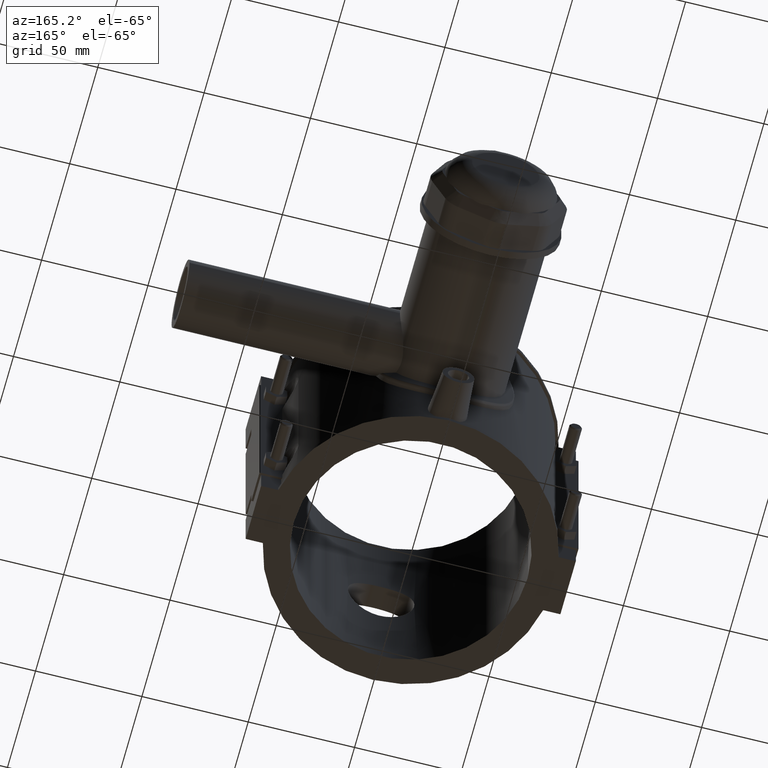
[diagram: clean part render]
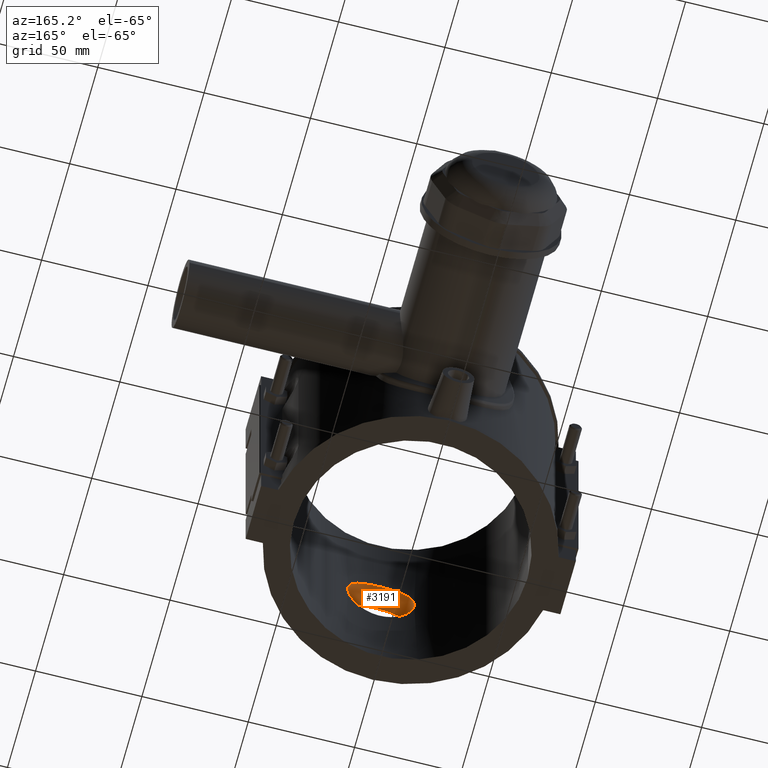
[diagram: same view with one face highlighted and labeled with its STEP entity id]
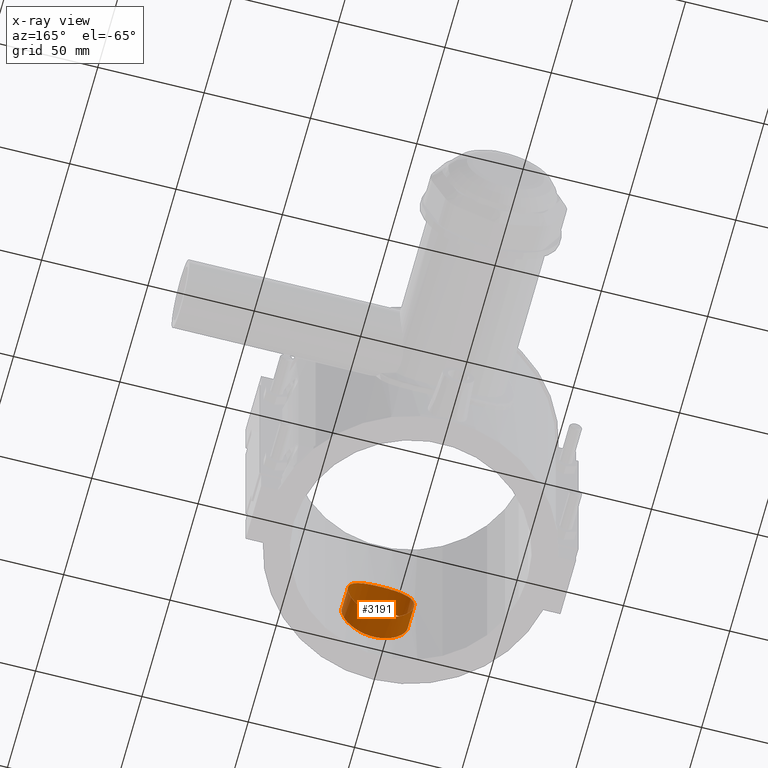
[diagram: x-ray of the same camera — body ghosted, the highlighted face saturated]
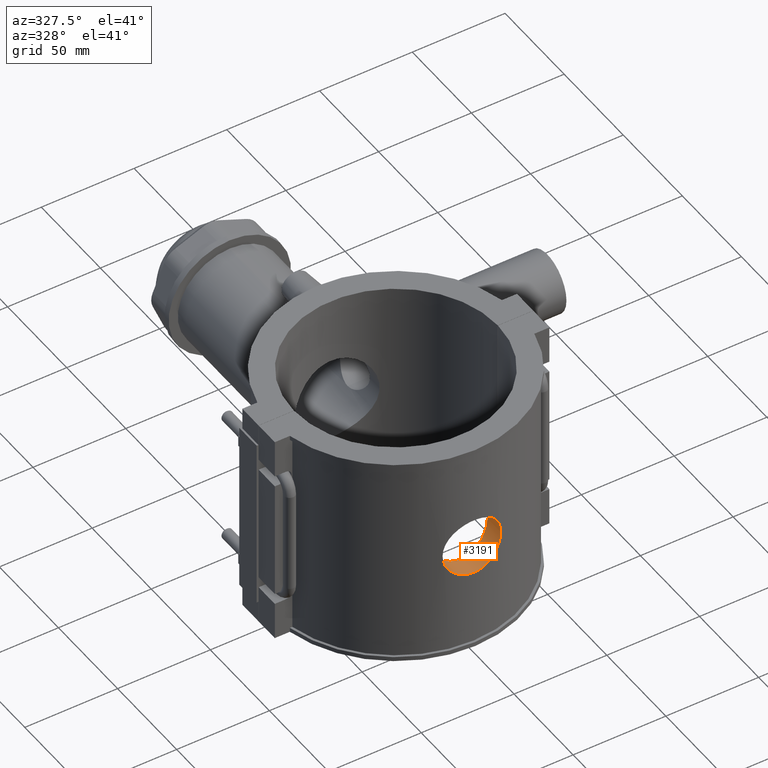
[diagram: same view with one face highlighted and labeled with its STEP entity id]
A machine part, auxiliary view. The second image highlights one B-rep face of the part: STEP entity #3191.
The next image is the same camera in x-ray: the body ghosted, the highlighted face saturated — about 0% of this face is hidden behind the body in this view.
A second angle (auxiliary view) of the same face is appended — the face is thin or edge-on in the first view.
In plain terms, the highlighted cylindrical surface (bore or boss wall) has radius 15.68 mm, axis along (0, -1, 0).
Its self-contained STEP definition (entity closure, byte-faithful):
#851=FACE_BOUND('',#1145,.T.);
#946=FACE_OUTER_BOUND('',#1144,.T.);
#1144=EDGE_LOOP('',(#2397));
#1145=EDGE_LOOP('',(#2398));
#1341=B_SPLINE_CURVE_WITH_KNOTS('',3,(#5303,#5304,#5305,#5306,#5307,#5308,
#5309,#5310,#5311,#5312,#5313,#5314,#5315,#5316,#5317,#5318,#5319,#5320,
#5321,#5322,#5323,#5324,#5325,#5326,#5327,#5328,#5329,#5330,#5331,#5332,
#5333,#5334,#5335,#5336,#5337,#5338,#5339,#5340,#5341,#5342,#5343,#5344,
#5345,#5346,#5347,#5348,#5349,#5350,#5351,#5352,#5353,#5354,#5355,#5356,
#5357,#5358,#5359,#5360,#5361,#5362,#5363,#5364,#5365,#5366,#5367,#5368),
 .UNSPECIFIED.,.T.,.F.,(4,2,2,2,2,2,2,2,2,2,2,2,2,2,2,2,2,2,2,2,2,2,2,2,
2,2,2,2,2,2,2,2,4),(0.,0.296563875466227,0.593127750932455,0.889691626398682,
1.18625550186491,1.48278575986581,1.77931601786671,2.07584627586761,2.37237653386851,
2.66890679186941,2.9654370498703,3.2619673078712,3.5584975658721,3.85506144133833,
4.15162531680456,4.44818919227079,4.74475306773701,5.04131694320324,5.33788081866947,
5.63444469413569,5.93100856960192,6.22753882760282,6.52406908560372,6.82059934360462,
7.11712960160552,7.41365985960642,7.71019011760732,8.00672037560822,8.30325063360912,
8.59981450907534,8.89637838454157,9.1929422600078,9.48950613547403),
 .UNSPECIFIED.);
#1342=B_SPLINE_CURVE_WITH_KNOTS('',3,(#5370,#5371,#5372,#5373,#5374,#5375,
#5376,#5377,#5378,#5379,#5380,#5381,#5382,#5383,#5384,#5385,#5386,#5387,
#5388,#5389,#5390,#5391,#5392,#5393,#5394,#5395,#5396,#5397,#5398,#5399,
#5400,#5401,#5402,#5403,#5404,#5405,#5406,#5407,#5408,#5409,#5410,#5411,
#5412,#5413,#5414,#5415,#5416,#5417,#5418,#5419,#5420,#5421,#5422,#5423,
#5424,#5425,#5426,#5427,#5428,#5429,#5430,#5431,#5432,#5433,#5434,#5435),
 .UNSPECIFIED.,.T.,.F.,(4,2,2,2,2,2,2,2,2,2,2,2,2,2,2,2,2,2,2,2,2,2,2,2,
2,2,2,2,2,2,2,2,4),(0.,0.297144208269426,0.594288416538853,0.891432624808279,
1.18857683307771,1.48564947203075,1.78272211098379,2.07979474993683,2.37686738888987,
2.67394002784291,2.97101266679596,3.268085305749,3.56515794470204,3.86230215297147,
4.15944636124089,4.45659056951032,4.75373477777975,5.05087898604917,5.3480231943186,
5.64516740258803,5.94231161085745,6.23938424981049,6.53645688876354,6.83352952771658,
7.13060216666962,7.42767480562266,7.7247474445757,8.02182008352874,8.31889272248179,
8.61603693075121,8.91318113902064,9.21032534729007,9.50746955555949),
 .UNSPECIFIED.);
#1462=VERTEX_POINT('',#5302);
#1463=VERTEX_POINT('',#5369);
#1815=EDGE_CURVE('',#1462,#1462,#1341,.T.);
#1816=EDGE_CURVE('',#1463,#1463,#1342,.T.);
#2397=ORIENTED_EDGE('',*,*,#1815,.F.);
#2398=ORIENTED_EDGE('',*,*,#1816,.F.);
#3105=CYLINDRICAL_SURFACE('',#3419,15.68);
#3191=ADVANCED_FACE('',(#946,#851),#3105,.F.);
#3419=AXIS2_PLACEMENT_3D('',#5301,#3871,#3872);
#3871=DIRECTION('center_axis',(0.,-1.,0.));
#3872=DIRECTION('ref_axis',(1.,0.,0.));
#5301=CARTESIAN_POINT('Origin',(0.,0.,0.));
#5302=CARTESIAN_POINT('',(15.68,-64.1103548578543,0.));
#5303=CARTESIAN_POINT('Ctrl Pts',(15.68,-64.1103548578543,0.));
#5304=CARTESIAN_POINT('Ctrl Pts',(15.68,-64.1103548578543,-0.988546251554091));
#5305=CARTESIAN_POINT('Ctrl Pts',(15.5850087326511,-64.1338407291311,-2.00958776819716));
#5306=CARTESIAN_POINT('Ctrl Pts',(15.1863101186619,-64.2294170051241,-4.03818340396453));
#5307=CARTESIAN_POINT('Ctrl Pts',(14.8827021093981,-64.3014292133957,-5.04576072893045));
#5308=CARTESIAN_POINT('Ctrl Pts',(14.0814573062221,-64.4816343832848,-6.97618043489832));
#5309=CARTESIAN_POINT('Ctrl Pts',(13.5831837902416,-64.589790921803,-7.90063266366072));
#5310=CARTESIAN_POINT('Ctrl Pts',(12.4332077788121,-64.8209789921638,-9.60927795077908));
#5311=CARTESIAN_POINT('Ctrl Pts',(11.7814217784567,-64.9437734197019,-10.3934468795534));
#5312=CARTESIAN_POINT('Ctrl Pts',(10.3935255475941,-65.1802893476943,-11.781343110416));
#5313=CARTESIAN_POINT('Ctrl Pts',(9.60939328313264,-65.3023929186199,-12.4331202302505));
#5314=CARTESIAN_POINT('Ctrl Pts',(7.90072532773865,-65.5310727781705,-13.5831313489686));
#5315=CARTESIAN_POINT('Ctrl Pts',(6.97621381436831,-65.6374281654528,-14.0814451846236));
#5316=CARTESIAN_POINT('Ctrl Pts',(5.04567794343743,-65.8139853627539,-14.8827347375424));
#5317=CARTESIAN_POINT('Ctrl Pts',(4.03804552177073,-65.884179951295,-15.1863471795047));
#5318=CARTESIAN_POINT('Ctrl Pts',(2.0094346459336,-65.9772169153438,-15.5850288641697));
#5319=CARTESIAN_POINT('Ctrl Pts',(0.988434193336333,-66.,-15.68));
#5320=CARTESIAN_POINT('Ctrl Pts',(-0.988434193336329,-66.,-15.68));
#5321=CARTESIAN_POINT('Ctrl Pts',(-2.00943464593359,-65.9772169153438,-15.5850288641697));
#5322=CARTESIAN_POINT('Ctrl Pts',(-4.03804552177073,-65.884179951295,-15.1863471795047));
#5323=CARTESIAN_POINT('Ctrl Pts',(-5.04567794343743,-65.8139853627539,-14.8827347375424));
#5324=CARTESIAN_POINT('Ctrl Pts',(-6.97621381436831,-65.6374281654528,-14.0814451846236));
#5325=CARTESIAN_POINT('Ctrl Pts',(-7.90072532773865,-65.5310727781705,-13.5831313489686));
#5326=CARTESIAN_POINT('Ctrl Pts',(-9.60939328313264,-65.3023929186199,-12.4331202302505));
#5327=CARTESIAN_POINT('Ctrl Pts',(-10.3935255475941,-65.1802893476943,-11.781343110416));
#5328=CARTESIAN_POINT('Ctrl Pts',(-11.7814217784567,-64.9437734197019,-10.3934468795534));
#5329=CARTESIAN_POINT('Ctrl Pts',(-12.4332077788121,-64.8209789921638,-9.60927795077908));
#5330=CARTESIAN_POINT('Ctrl Pts',(-13.5831837902416,-64.589790921803,-7.90063266366072));
#5331=CARTESIAN_POINT('Ctrl Pts',(-14.0814573062221,-64.4816343832848,-6.97618043489832));
#5332=CARTESIAN_POINT('Ctrl Pts',(-14.8827021093981,-64.3014292133957,-5.04576072893044));
#5333=CARTESIAN_POINT('Ctrl Pts',(-15.1863101186619,-64.2294170051241,-4.03818340396453));
#5334=CARTESIAN_POINT('Ctrl Pts',(-15.5850087326511,-64.1338407291311,-2.00958776819716));
#5335=CARTESIAN_POINT('Ctrl Pts',(-15.68,-64.1103548578543,-0.988546251554092));
#5336=CARTESIAN_POINT('Ctrl Pts',(-15.68,-64.1103548578543,0.988546251554091));
#5337=CARTESIAN_POINT('Ctrl Pts',(-15.5850087326511,-64.1338407291311,2.00958776819716));
#5338=CARTESIAN_POINT('Ctrl Pts',(-15.1863101186619,-64.2294170051241,4.03818340396453));
#5339=CARTESIAN_POINT('Ctrl Pts',(-14.8827021093981,-64.3014292133957,5.04576072893045));
#5340=CARTESIAN_POINT('Ctrl Pts',(-14.0814573062221,-64.4816343832848,6.97618043489832));
#5341=CARTESIAN_POINT('Ctrl Pts',(-13.5831837902416,-64.589790921803,7.90063266366072));
#5342=CARTESIAN_POINT('Ctrl Pts',(-12.4332077788121,-64.8209789921638,9.60927795077908));
#5343=CARTESIAN_POINT('Ctrl Pts',(-11.7814217784567,-64.9437734197019,10.3934468795534));
#5344=CARTESIAN_POINT('Ctrl Pts',(-10.3935255475941,-65.1802893476943,11.781343110416));
#5345=CARTESIAN_POINT('Ctrl Pts',(-9.60939328313265,-65.3023929186199,12.4331202302505));
#5346=CARTESIAN_POINT('Ctrl Pts',(-7.90072532773866,-65.5310727781705,13.5831313489686));
#5347=CARTESIAN_POINT('Ctrl Pts',(-6.97621381436832,-65.6374281654528,14.0814451846236));
#5348=CARTESIAN_POINT('Ctrl Pts',(-5.04567794343744,-65.8139853627539,14.8827347375424));
#5349=CARTESIAN_POINT('Ctrl Pts',(-4.03804552177073,-65.884179951295,15.1863471795047));
#5350=CARTESIAN_POINT('Ctrl Pts',(-2.0094346459336,-65.9772169153438,15.5850288641697));
#5351=CARTESIAN_POINT('Ctrl Pts',(-0.988434193336334,-66.,15.68));
#5352=CARTESIAN_POINT('Ctrl Pts',(0.988434193336329,-66.,15.68));
#5353=CARTESIAN_POINT('Ctrl Pts',(2.00943464593359,-65.9772169153438,15.5850288641697));
#5354=CARTESIAN_POINT('Ctrl Pts',(4.03804552177073,-65.884179951295,15.1863471795047));
#5355=CARTESIAN_POINT('Ctrl Pts',(5.04567794343743,-65.8139853627539,14.8827347375424));
#5356=CARTESIAN_POINT('Ctrl Pts',(6.97621381436831,-65.6374281654528,14.0814451846236));
#5357=CARTESIAN_POINT('Ctrl Pts',(7.90072532773865,-65.5310727781705,13.5831313489686));
#5358=CARTESIAN_POINT('Ctrl Pts',(9.60939328313263,-65.3023929186199,12.4331202302505));
#5359=CARTESIAN_POINT('Ctrl Pts',(10.3935255475941,-65.1802893476943,11.781343110416));
#5360=CARTESIAN_POINT('Ctrl Pts',(11.7814217784567,-64.9437734197019,10.3934468795534));
#5361=CARTESIAN_POINT('Ctrl Pts',(12.4332077788121,-64.8209789921638,9.60927795077908));
#5362=CARTESIAN_POINT('Ctrl Pts',(13.5831837902416,-64.589790921803,7.90063266366072));
#5363=CARTESIAN_POINT('Ctrl Pts',(14.0814573062221,-64.4816343832848,6.97618043489832));
#5364=CARTESIAN_POINT('Ctrl Pts',(14.8827021093981,-64.3014292133957,5.04576072893045));
#5365=CARTESIAN_POINT('Ctrl Pts',(15.1863101186619,-64.2294170051241,4.03818340396454));
#5366=CARTESIAN_POINT('Ctrl Pts',(15.5850087326511,-64.1338407291311,2.00958776819717));
#5367=CARTESIAN_POINT('Ctrl Pts',(15.68,-64.1103548578543,0.988546251554095));
#5368=CARTESIAN_POINT('Ctrl Pts',(15.68,-64.1103548578543,2.77555756156289E-16));
#5369=CARTESIAN_POINT('',(15.68,-52.7175264973614,-2.77555756156289E-16));
#5370=CARTESIAN_POINT('Ctrl Pts',(15.68,-52.7175264973614,-2.77555756156289E-16));
#5371=CARTESIAN_POINT('Ctrl Pts',(15.68,-52.7175264973614,0.990480694231421));
#5372=CARTESIAN_POINT('Ctrl Pts',(15.5846373254499,-52.746207264734,2.01290176790925));
#5373=CARTESIAN_POINT('Ctrl Pts',(15.1850715318854,-52.8626229382127,4.04305536823509));
#5374=CARTESIAN_POINT('Ctrl Pts',(14.8809748505162,-52.9502526755315,5.05081487134343));
#5375=CARTESIAN_POINT('Ctrl Pts',(14.07923491481,-53.1690492932834,6.98063767389646));
#5376=CARTESIAN_POINT('Ctrl Pts',(13.5809551196607,-53.3001637160247,7.90434314647605));
#5377=CARTESIAN_POINT('Ctrl Pts',(12.431637151488,-53.5798860750143,9.61121117917902));
#5378=CARTESIAN_POINT('Ctrl Pts',(11.7805087691678,-53.7282077959576,10.3943598888423));
#5379=CARTESIAN_POINT('Ctrl Pts',(10.3945268207983,-54.013463792211,11.7803418372119));
#5380=CARTESIAN_POINT('Ctrl Pts',(9.61145645077499,-54.1605690881619,12.4314508224784));
#5381=CARTESIAN_POINT('Ctrl Pts',(7.90454184777664,-54.4358848300262,13.580842494435));
#5382=CARTESIAN_POINT('Ctrl Pts',(6.98071150310746,-54.5638363290412,14.0792078159597));
#5383=CARTESIAN_POINT('Ctrl Pts',(5.05064212921114,-54.7762136516227,14.8810430423131));
#5384=CARTESIAN_POINT('Ctrl Pts',(4.04276473357668,-54.8606379928072,15.1851498213668));
#5385=CARTESIAN_POINT('Ctrl Pts',(2.01257689591603,-54.9725666301579,15.5846801708534));
#5386=CARTESIAN_POINT('Ctrl Pts',(0.990242129843473,-55.,15.68));
#5387=CARTESIAN_POINT('Ctrl Pts',(-0.990242129843473,-55.,15.68));
#5388=CARTESIAN_POINT('Ctrl Pts',(-2.01257689591603,-54.9725666301579,15.5846801708534));
#5389=CARTESIAN_POINT('Ctrl Pts',(-4.04276473357668,-54.8606379928072,15.1851498213668));
#5390=CARTESIAN_POINT('Ctrl Pts',(-5.05064212921114,-54.7762136516227,14.8810430423131));
#5391=CARTESIAN_POINT('Ctrl Pts',(-6.98071150310746,-54.5638363290412,14.0792078159597));
#5392=CARTESIAN_POINT('Ctrl Pts',(-7.90454184777663,-54.4358848300262,13.580842494435));
#5393=CARTESIAN_POINT('Ctrl Pts',(-9.61145645077498,-54.1605690881619,12.4314508224784));
#5394=CARTESIAN_POINT('Ctrl Pts',(-10.3945268207982,-54.013463792211,11.7803418372119));
#5395=CARTESIAN_POINT('Ctrl Pts',(-11.7805087691678,-53.7282077959576,10.3943598888423));
#5396=CARTESIAN_POINT('Ctrl Pts',(-12.431637151488,-53.5798860750143,9.61121117917902));
#5397=CARTESIAN_POINT('Ctrl Pts',(-13.5809551196607,-53.3001637160247,7.90434314647605));
#5398=CARTESIAN_POINT('Ctrl Pts',(-14.07923491481,-53.1690492932834,6.98063767389646));
#5399=CARTESIAN_POINT('Ctrl Pts',(-14.8809748505162,-52.9502526755315,5.05081487134343));
#5400=CARTESIAN_POINT('Ctrl Pts',(-15.1850715318854,-52.8626229382127,4.04305536823508));
#5401=CARTESIAN_POINT('Ctrl Pts',(-15.5846373254499,-52.746207264734,2.01290176790924));
#5402=CARTESIAN_POINT('Ctrl Pts',(-15.68,-52.7175264973614,0.99048069423142));
#5403=CARTESIAN_POINT('Ctrl Pts',(-15.68,-52.7175264973614,-0.99048069423142));
#5404=CARTESIAN_POINT('Ctrl Pts',(-15.5846373254499,-52.746207264734,-2.01290176790924));
#5405=CARTESIAN_POINT('Ctrl Pts',(-15.1850715318854,-52.8626229382127,-4.04305536823508));
#5406=CARTESIAN_POINT('Ctrl Pts',(-14.8809748505162,-52.9502526755315,-5.05081487134343));
#5407=CARTESIAN_POINT('Ctrl Pts',(-14.07923491481,-53.1690492932834,-6.98063767389646));
#5408=CARTESIAN_POINT('Ctrl Pts',(-13.5809551196607,-53.3001637160247,-7.90434314647605));
#5409=CARTESIAN_POINT('Ctrl Pts',(-12.431637151488,-53.5798860750143,-9.61121117917901));
#5410=CARTESIAN_POINT('Ctrl Pts',(-11.7805087691678,-53.7282077959576,-10.3943598888423));
#5411=CARTESIAN_POINT('Ctrl Pts',(-10.3945268207983,-54.013463792211,-11.7803418372119));
#5412=CARTESIAN_POINT('Ctrl Pts',(-9.61145645077499,-54.1605690881619,-12.4314508224784));
#5413=CARTESIAN_POINT('Ctrl Pts',(-7.90454184777664,-54.4358848300262,-13.580842494435));
#5414=CARTESIAN_POINT('Ctrl Pts',(-6.98071150310747,-54.5638363290412,-14.0792078159597));
#5415=CARTESIAN_POINT('Ctrl Pts',(-5.05064212921114,-54.7762136516227,-14.8810430423131));
#5416=CARTESIAN_POINT('Ctrl Pts',(-4.04276473357669,-54.8606379928072,-15.1851498213668));
#5417=CARTESIAN_POINT('Ctrl Pts',(-2.01257689591604,-54.9725666301579,-15.5846801708534));
#5418=CARTESIAN_POINT('Ctrl Pts',(-0.990242129843478,-55.,-15.68));
#5419=CARTESIAN_POINT('Ctrl Pts',(0.990242129843472,-55.,-15.68));
#5420=CARTESIAN_POINT('Ctrl Pts',(2.01257689591603,-54.9725666301579,-15.5846801708534));
#5421=CARTESIAN_POINT('Ctrl Pts',(4.04276473357668,-54.8606379928072,-15.1851498213668));
#5422=CARTESIAN_POINT('Ctrl Pts',(5.05064212921114,-54.7762136516227,-14.8810430423131));
#5423=CARTESIAN_POINT('Ctrl Pts',(6.98071150310746,-54.5638363290412,-14.0792078159597));
#5424=CARTESIAN_POINT('Ctrl Pts',(7.90454184777664,-54.4358848300262,-13.580842494435));
#5425=CARTESIAN_POINT('Ctrl Pts',(9.61145645077499,-54.1605690881619,-12.4314508224784));
#5426=CARTESIAN_POINT('Ctrl Pts',(10.3945268207982,-54.013463792211,-11.7803418372119));
#5427=CARTESIAN_POINT('Ctrl Pts',(11.7805087691678,-53.7282077959576,-10.3943598888423));
#5428=CARTESIAN_POINT('Ctrl Pts',(12.431637151488,-53.5798860750143,-9.61121117917901));
#5429=CARTESIAN_POINT('Ctrl Pts',(13.5809551196607,-53.3001637160247,-7.90434314647604));
#5430=CARTESIAN_POINT('Ctrl Pts',(14.07923491481,-53.1690492932834,-6.98063767389645));
#5431=CARTESIAN_POINT('Ctrl Pts',(14.8809748505162,-52.9502526755315,-5.05081487134343));
#5432=CARTESIAN_POINT('Ctrl Pts',(15.1850715318854,-52.8626229382127,-4.04305536823508));
#5433=CARTESIAN_POINT('Ctrl Pts',(15.5846373254499,-52.746207264734,-2.01290176790925));
#5434=CARTESIAN_POINT('Ctrl Pts',(15.68,-52.7175264973614,-0.99048069423142));
#5435=CARTESIAN_POINT('Ctrl Pts',(15.68,-52.7175264973614,0.));